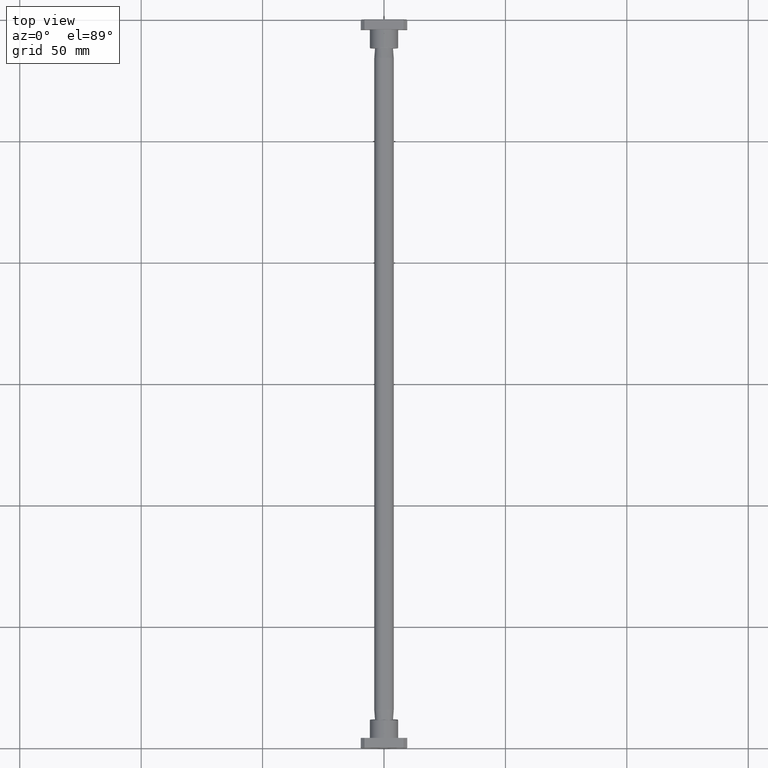
[diagram: clean part render]
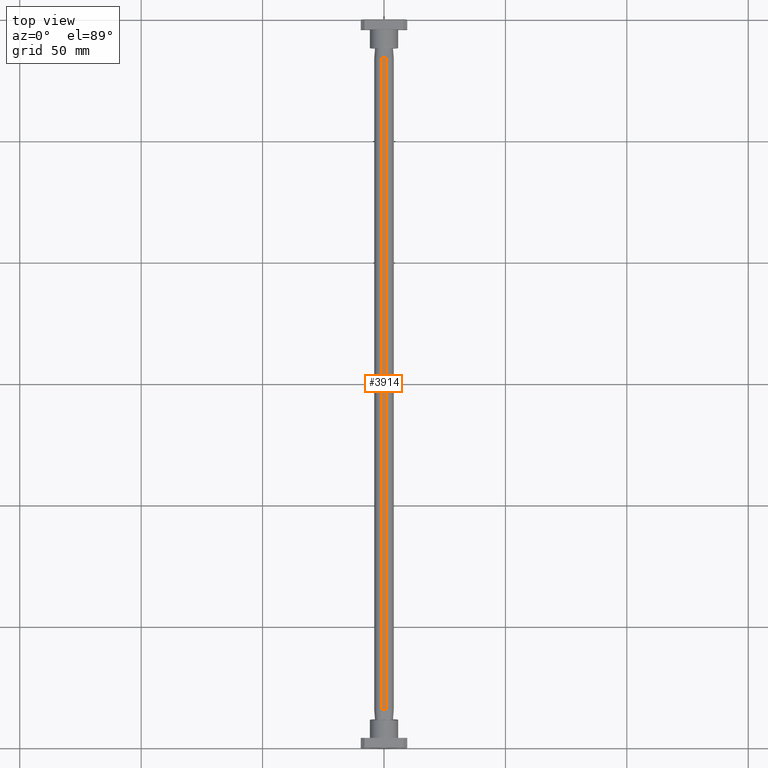
[diagram: same view with one face highlighted and labeled with its STEP entity id]
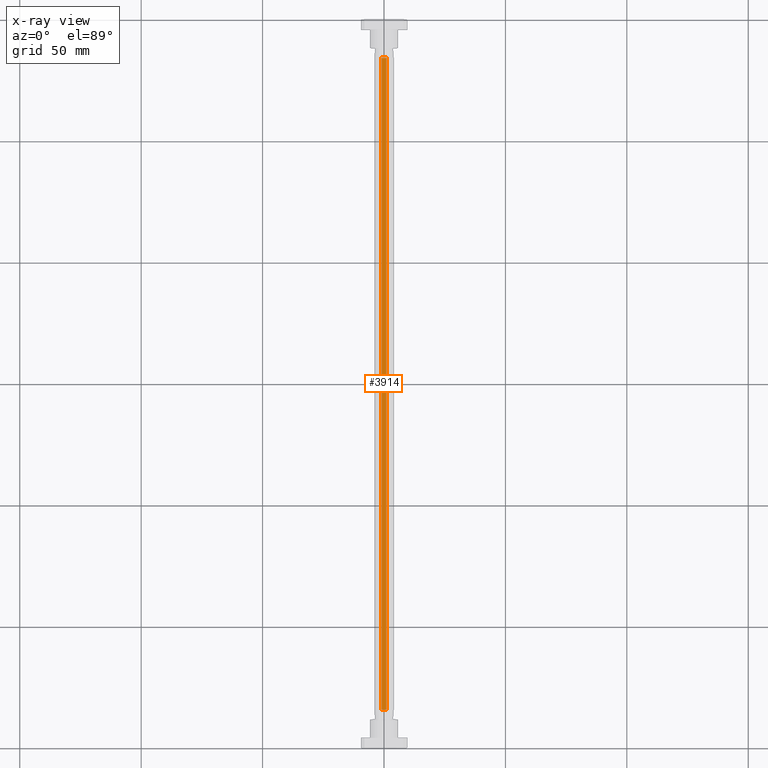
[diagram: x-ray of the same camera — body ghosted, the highlighted face saturated]
A machine part, top view. The second image highlights one B-rep face of the part: STEP entity #3914.
The next image is the same camera in x-ray: the body ghosted, the highlighted face saturated — about 0% of this face is hidden behind the body in this view.
In plain terms, the highlighted planar face has unit normal (-0, 0, -1).
Its self-contained STEP definition (entity closure, byte-faithful):
#63 = ORIENTED_EDGE ( 'NONE', *, *, #2790, .F. ) ;
#158 = CARTESIAN_POINT ( 'NONE',  ( 0.03937007874015831900, 0.6220472440923464600, 0.2362204724407635800 ) ) ;
#291 = DIRECTION ( 'NONE',  ( 0.0000000000000000000, -1.000000000000000000, 0.0000000000000000000 ) ) ;
#596 = CARTESIAN_POINT ( 'NONE',  ( -0.03937007874015684100, 1.322834645669291700, 0.2362204724409446600 ) ) ;
#629 = VERTEX_POINT ( 'NONE', #1834 ) ;
#648 = AXIS2_PLACEMENT_3D ( 'NONE', #2080, #1109, #3426 ) ;
#784 = DIRECTION ( 'NONE',  ( 1.000000000000000000, 0.0000000000000000000, -4.482525461924068700E-015 ) ) ;
#817 = VERTEX_POINT ( 'NONE', #2641 ) ;
#913 = DIRECTION ( 'NONE',  ( -0.0000000000000000000, 1.000000000000000000, -0.0000000000000000000 ) ) ;
#1034 = VECTOR ( 'NONE', #913, 39.37007874015748100 ) ;
#1105 = EDGE_LOOP ( 'NONE', ( #63, #1563, #3434, #3242 ) ) ;
#1109 = DIRECTION ( 'NONE',  ( -4.482525461924068700E-015, 0.0000000000000000000, -1.000000000000000000 ) ) ;
#1388 = CARTESIAN_POINT ( 'NONE',  ( -0.03937007874015684100, 0.6220472440944879700, 0.2362204724409446600 ) ) ;
#1444 = EDGE_CURVE ( 'Defeatured_0_29+Defeatured_0_23+Defeatured_0_22+Defeatured_0_26', #629, #3938, #2583, .T. ) ;
#1477 = VECTOR ( 'NONE', #784, 39.37007874015748100 ) ;
#1488 = VECTOR ( 'NONE', #291, 39.37007874015748100 ) ;
#1563 = ORIENTED_EDGE ( 'NONE', *, *, #2206, .F. ) ;
#1791 = VECTOR ( 'NONE', #3392, 39.37007874015748100 ) ;
#1834 = CARTESIAN_POINT ( 'NONE',  ( 0.03937007874015834700, 11.18897637795471000, 0.2362204724405827500 ) ) ;
#1993 = CARTESIAN_POINT ( 'NONE',  ( -0.03937007874015684800, 11.18897637795275400, 0.2362204724409446300 ) ) ;
#1997 = LINE ( 'NONE', #1388, #1791 ) ;
#2080 = CARTESIAN_POINT ( 'NONE',  ( -0.03937007874015684100, 1.322834645669291700, 0.2362204724409446600 ) ) ;
#2206 = EDGE_CURVE ( 'Defeatured_0_14+Defeatured_0_23+Defeatured_0_9+Defeatured_0_7', #817, #3769, #3764, .T. ) ;
#2582 = CARTESIAN_POINT ( 'NONE',  ( 0.03937007874015834700, 1.322834645669291700, 0.2362204724409444900 ) ) ;
#2583 = LINE ( 'NONE', #2582, #1488 ) ;
#2641 = CARTESIAN_POINT ( 'NONE',  ( -0.03937007874015684800, 0.6220472440944879700, 0.2362204724409446300 ) ) ;
#2790 = EDGE_CURVE ( 'Defeatured_0_15+Defeatured_0_23+Defeatured_0_7+Defeatured_0_22', #3769, #629, #3252, .T. ) ;
#3084 = CARTESIAN_POINT ( 'NONE',  ( -0.03937007874015684100, 11.18897637795275700, 0.2362204724409446600 ) ) ;
#3089 = PLANE ( 'NONE',  #648 ) ;
#3242 = ORIENTED_EDGE ( 'NONE', *, *, #1444, .F. ) ;
#3252 = LINE ( 'NONE', #3084, #1477 ) ;
#3392 = DIRECTION ( 'NONE',  ( -1.000000000000000000, -0.0000000000000000000, 4.482525461924068700E-015 ) ) ;
#3426 = DIRECTION ( 'NONE',  ( 1.000000000000000000, 0.0000000000000000000, -4.482525461924068700E-015 ) ) ;
#3434 = ORIENTED_EDGE ( 'NONE', *, *, #3867, .F. ) ;
#3460 = FACE_OUTER_BOUND ( 'NONE', #1105, .T. ) ;
#3764 = LINE ( 'NONE', #596, #1034 ) ;
#3769 = VERTEX_POINT ( 'NONE', #1993 ) ;
#3867 = EDGE_CURVE ( 'Defeatured_0_17+Defeatured_0_23+Defeatured_0_26+Defeatured_0_9', #3938, #817, #1997, .T. ) ;
#3914 = ADVANCED_FACE ( 'Defeatured_0_23', ( #3460 ), #3089, .F. ) ;
#3938 = VERTEX_POINT ( 'NONE', #158 ) ;